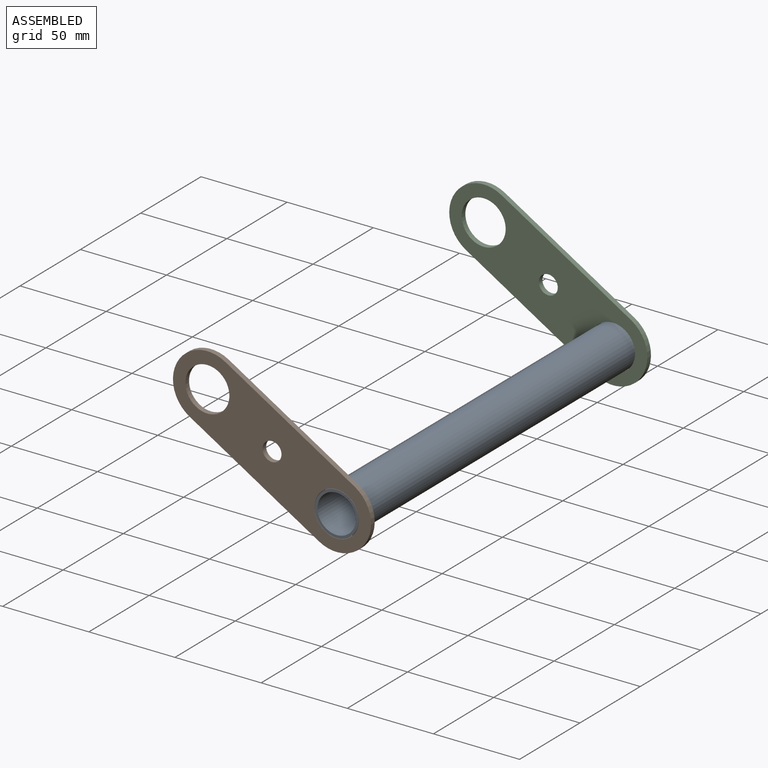
[diagram: assembled view]
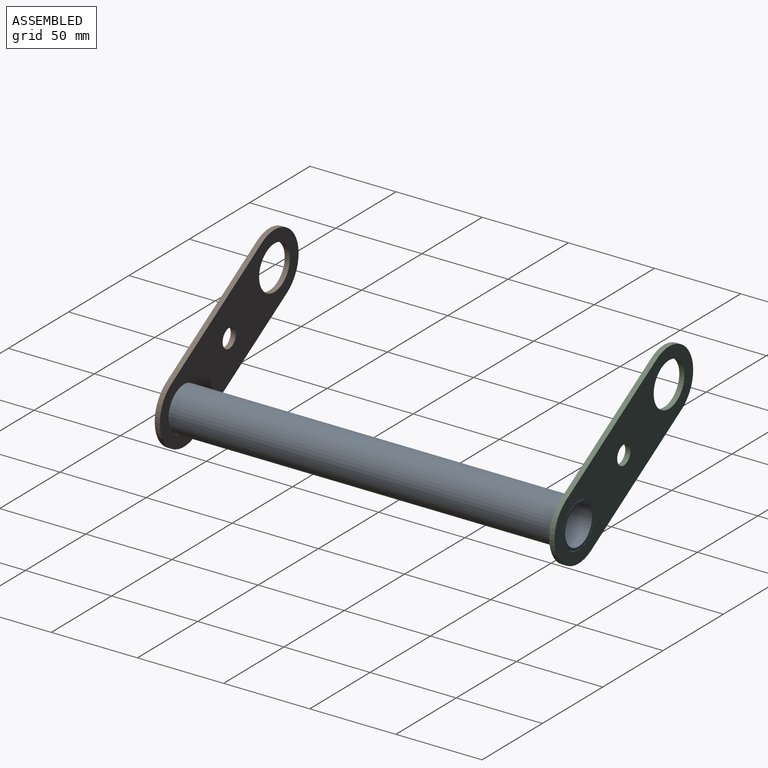
[diagram: assembled view, second angle]
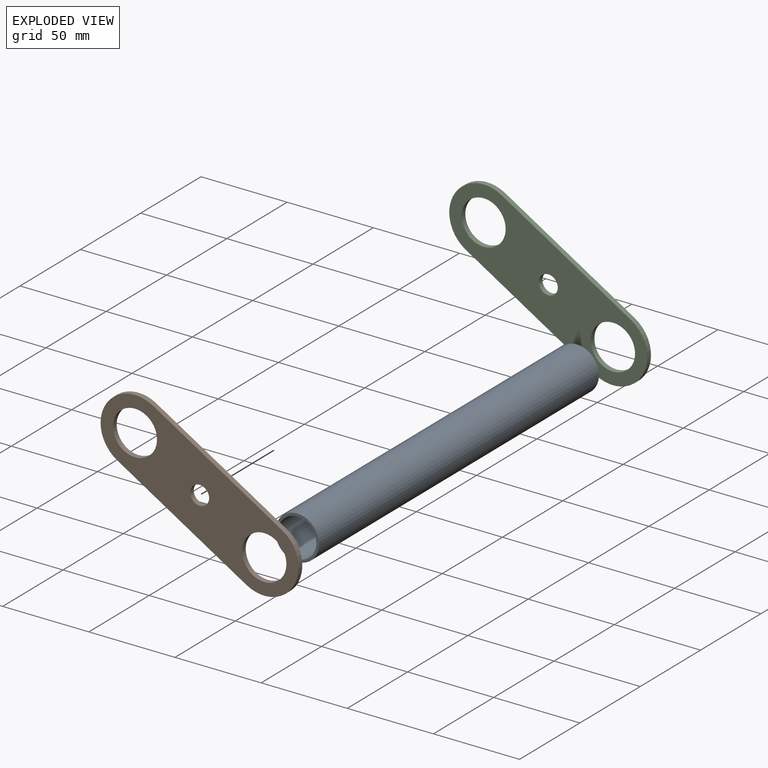
[diagram: exploded view]
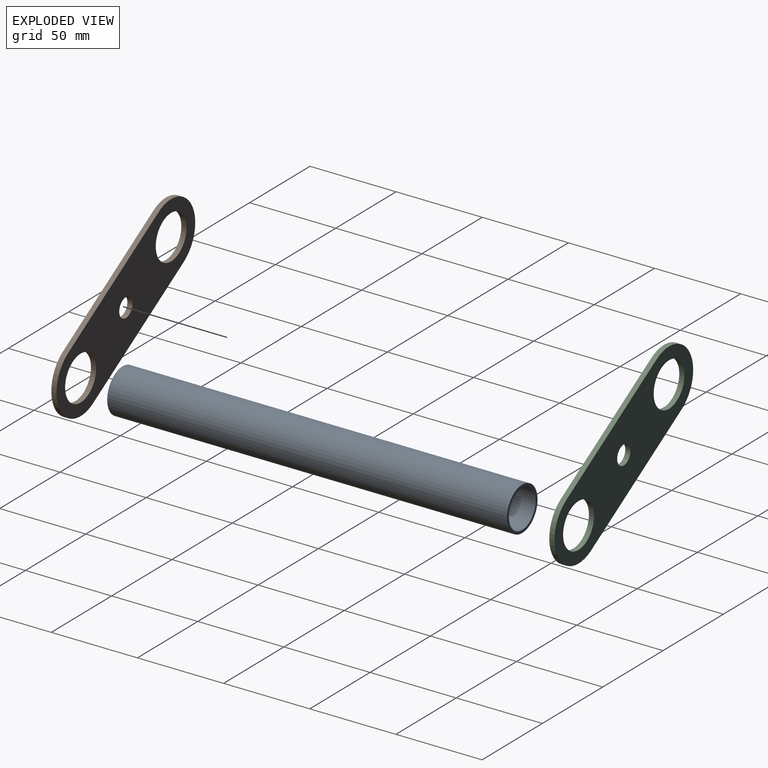
[diagram: exploded view, second angle]
ASSEMBLY  parts=3 mates=2
PART A: 4 faces, bbox 25.4x232x25.4 mm
  f0: cylinder r=11.1mm len=232mm, axis (0,1,0), area 16180.5mm2, adj f2,f3
  f1: cylinder r=12.7mm len=232mm, axis (0,1,0), area 18512.8mm2, adj f2,f3
  f2: plane 25.4x25.4mm, normal (0,-1,0), area 119.6mm2, adj f0,f1
  f3: plane 25.4x25.4mm, normal (0,1,0), area 119.6mm2, adj f0,f1
PART B: 9 faces, bbox 115x3x85.3 mm
  f0: cylinder r=20mm len=37.12mm, axis (0,1,0), area 188.5mm2, adj f1,f6,f7,f8
  f1: plane 75x45.3mm, normal (-0.52,0,0.86), area 262.9mm2, adj f0,f2,f7,f8
  f2: cylinder r=20mm len=37.12mm, axis (0,1,0), area 188.5mm2, adj f1,f6,f7,f8
  f3: cylinder r=5.5mm len=11mm, axis (0,1,0), area 103.7mm2, adj f7,f8
  f4: cylinder r=12.75mm len=25.5mm, axis (0,1,0), area 240.3mm2, adj f7,f8
  f5: cylinder r=12.85mm len=25.7mm, axis (0,1,0), area 242.2mm2, adj f7,f8
  f6: plane 75x45.3mm, normal (0.52,0,-0.86), area 262.9mm2, adj f0,f2,f7,f8
  f7: plane 115x85.3mm, normal (0,-1,0), area 3636.9mm2, adj f0,f1,f2,f3,f4,f5,f6
  f8: plane 115x85.3mm, normal (0,1,0), area 3636.9mm2, adj f0,f1,f2,f3,f4,f5,f6
PART C: same geometry as B
PLACE A t=(275,0,30)mm fixed
PLACE B rot(axis=(1,0,0),180deg) t=(200,-8,15.3)mm
PLACE C rot(axis=(1,0,0),180deg) t=(200,221,15.3)mm
MATE fastened B.f0 <-> A.f0  axis (0,-1,0) through (0,-116,0)mm
MATE fastened C.f0 <-> A.f0  axis (0,1,0) through (0,116,0)mm
